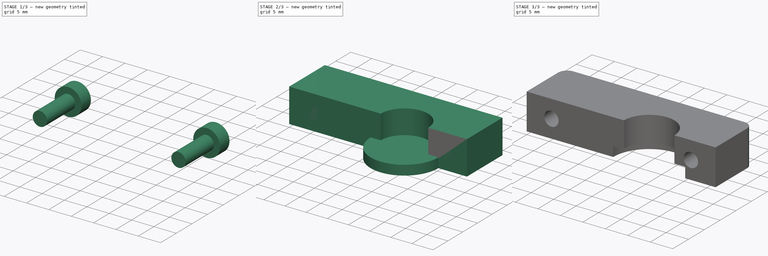
[diagram: build sequence overview — one tinted view per stage of 3, left to right]
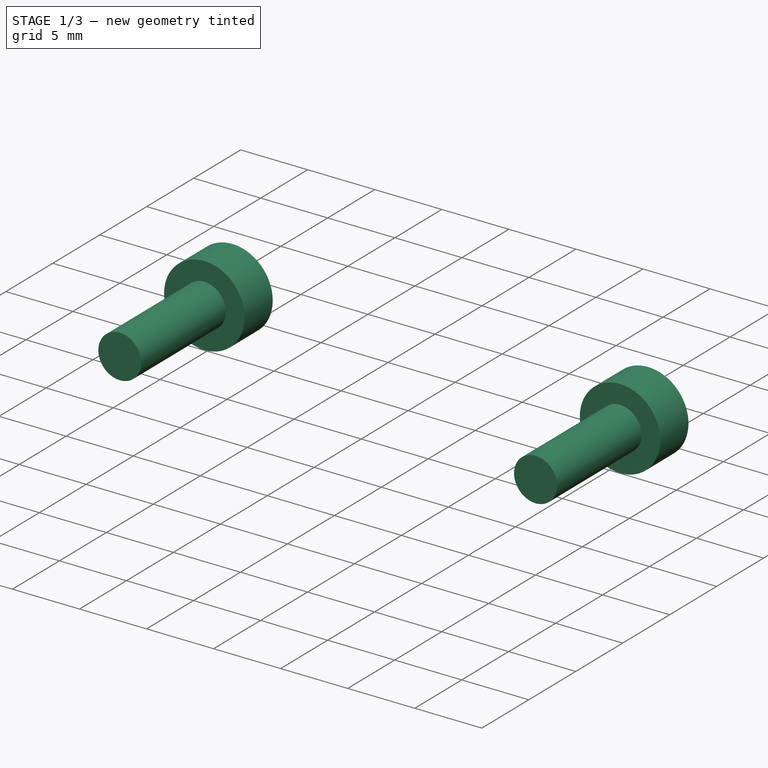
[diagram: stage 1 of 3 — iso view after this stage's code; geometry added in this stage tinted green]
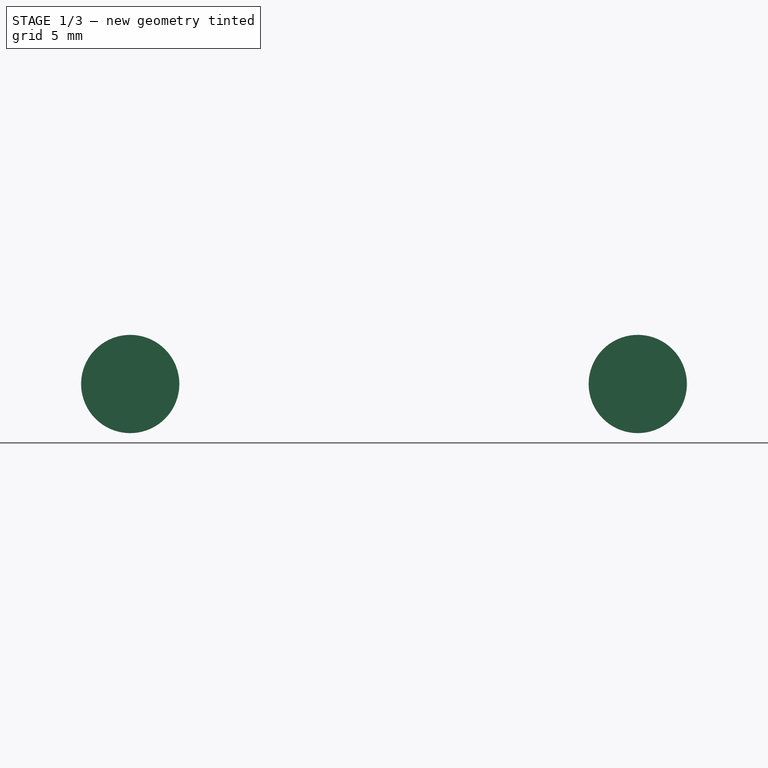
[diagram: stage 1 of 3 — front view after this stage's code; geometry added in this stage tinted green]
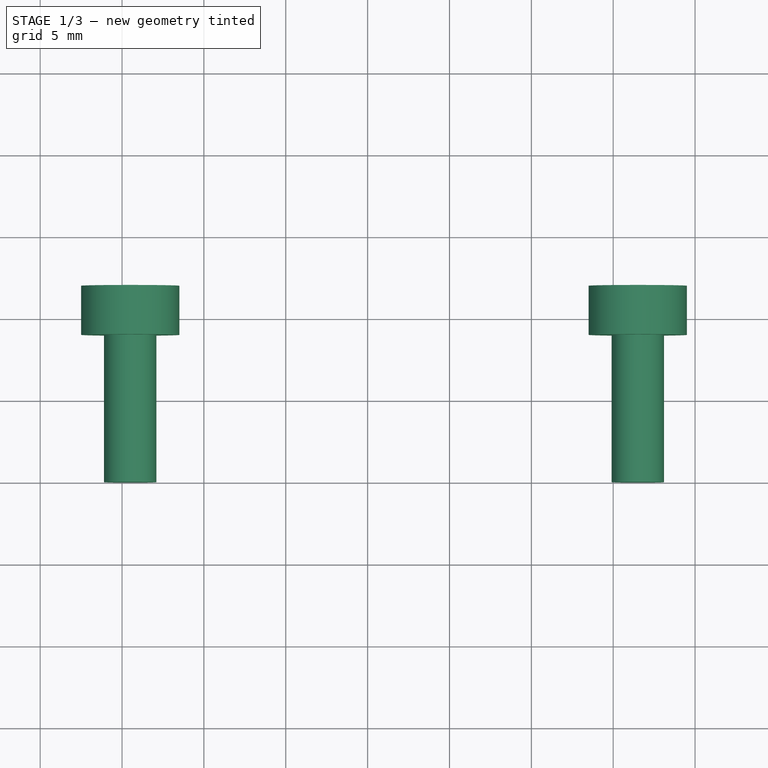
[diagram: stage 1 of 3 — top view after this stage's code; geometry added in this stage tinted green]
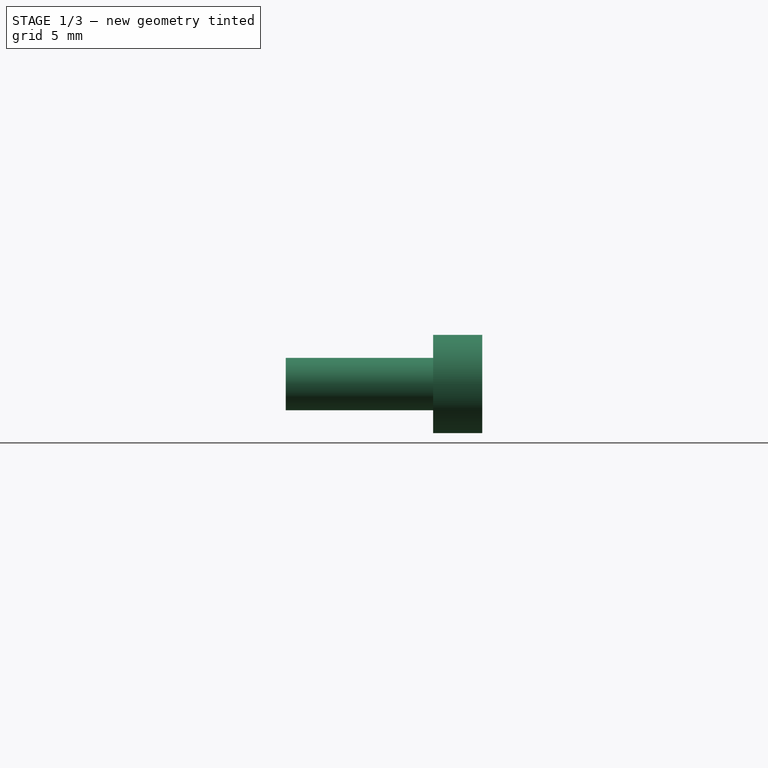
[diagram: stage 1 of 3 — right view after this stage's code; geometry added in this stage tinted green]
FCSTD DOCUMENT  (FreeCAD 0.16R6707 (Git))
Label: HotEndMount
License: All rights reserved
LicenseURL: http://en.wikipedia.org/wiki/All_rights_reserved
objects: Sketcher::SketchObject×4, PartDesign::Pad×4, Part::MultiFuse×1, Part::Cut×1, PartDesign::Fillet×1
note: 15 computed .brp shape members not serialized (recipe doc carries the construction recipe); baked Part::Feature solids carry a one-line shape summary decoded from their .brp

FEATURE [Sketcher::SketchObject] Sketch007  label="HotEndSK02"
  Placement = pos=(0,0,0) rot=(1,0,0;1.5708rad)
  sketch-geometry (2):
    g0: Circle CenterX=5.5 CenterY=4 CenterZ=0 NormalX=0 NormalY=0 NormalZ=1 Radius=1.6
    g1: Circle CenterX=36.5 CenterY=4 CenterZ=0 NormalX=0 NormalY=0 NormalZ=1 Radius=1.6
  constraints (6):
    c: Radius(g1) = 1.6
    c: Equal(g1,g0)
    c: DistanceY(g1,g0) = 0
    c: DistanceX(g-1,g0) = 5.5
    c: DistanceX(g0,g1) = 31
    c: DistanceY(g-1,g0) = 4
FEATURE [PartDesign::Pad] Pad007  label="HotEndMount02"
  Length = 12
  Length2 = 100
  Placement = pos=(0,0,0) rot=(1,0,0;1.5708rad)
  Reversed = true
  Sketch = -> Sketch007
  Type = 0
FEATURE [Sketcher::SketchObject] Sketch008  label="FlushSK"
  Placement = pos=(0,9,0) rot=(1,0,0;1.5708rad)
  sketch-geometry (2):
    g0: Circle CenterX=5.5 CenterY=4 CenterZ=0 NormalX=0 NormalY=0 NormalZ=1 Radius=3
    g1: Circle CenterX=36.5 CenterY=4 CenterZ=0 NormalX=0 NormalY=0 NormalZ=1 Radius=3
  constraints (6):
    c: DistanceY(g0,g1) = 0
    c: DistanceX(g0,g1) = 31
    c: DistanceY(g-1,g0) = 4
    c: DistanceX(g-1,g0) = 5.5
    c: Radius(g0) = 3
    c: Equal(g0,g1)
FEATURE [PartDesign::Pad] Pad008  label="Flush"
  Length = 3
  Length2 = 100
  Placement = pos=(0,9,0) rot=(1,0,0;1.5708rad)
  Reversed = true
  Sketch = -> Sketch008
  Type = 0
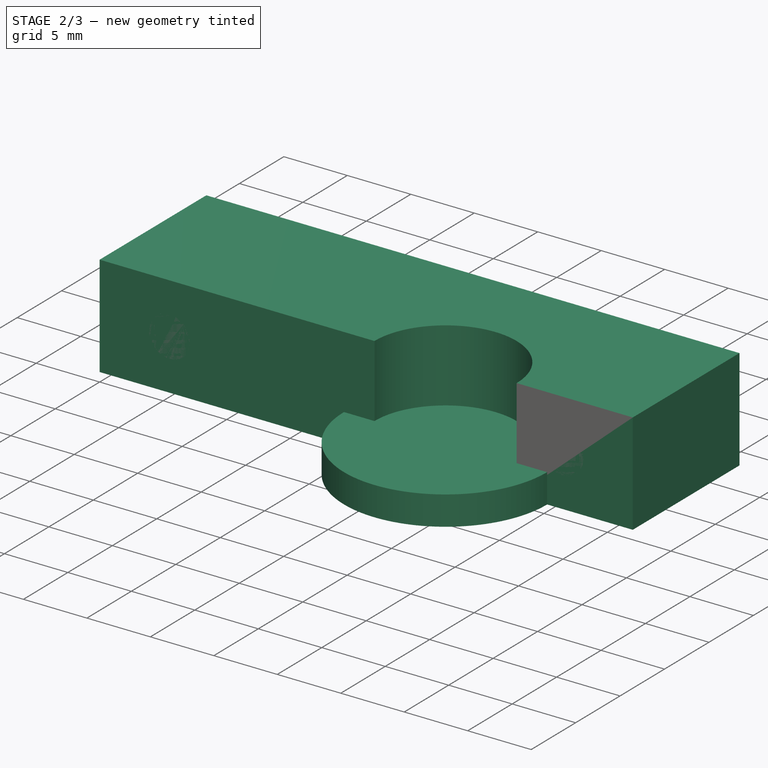
[diagram: stage 2 of 3 — iso view after this stage's code; geometry added in this stage tinted green]
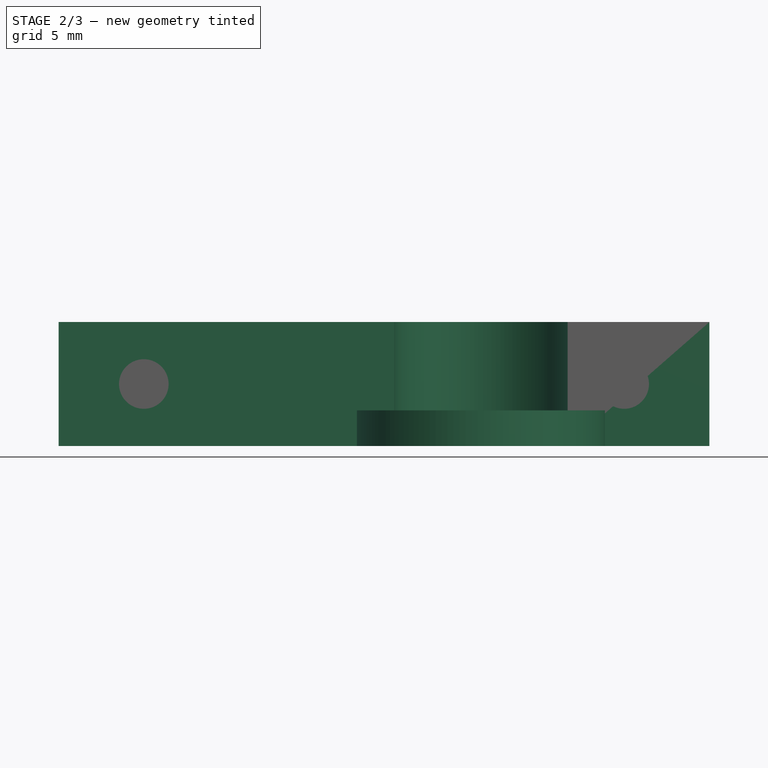
[diagram: stage 2 of 3 — front view after this stage's code; geometry added in this stage tinted green]
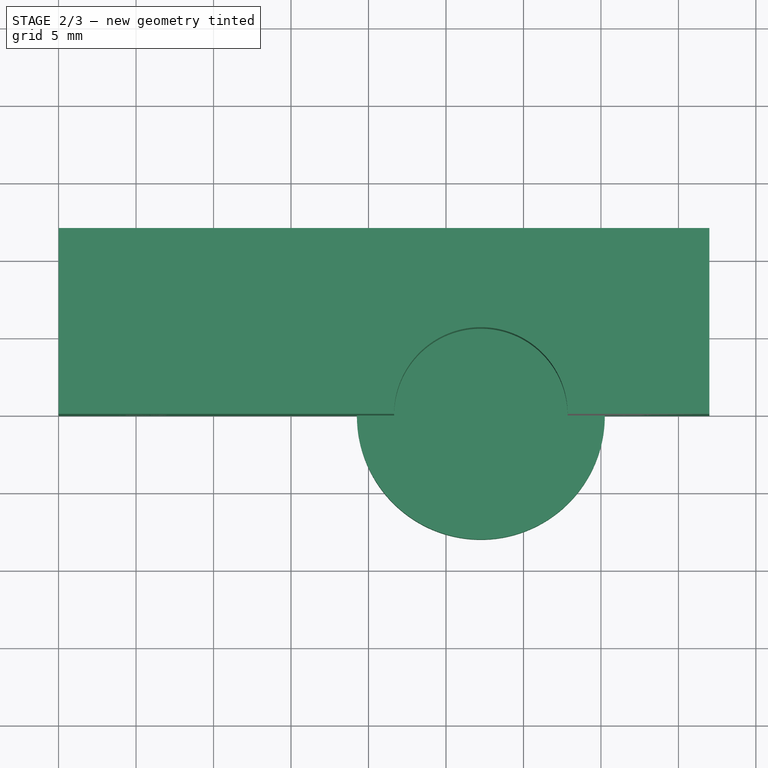
[diagram: stage 2 of 3 — top view after this stage's code; geometry added in this stage tinted green]
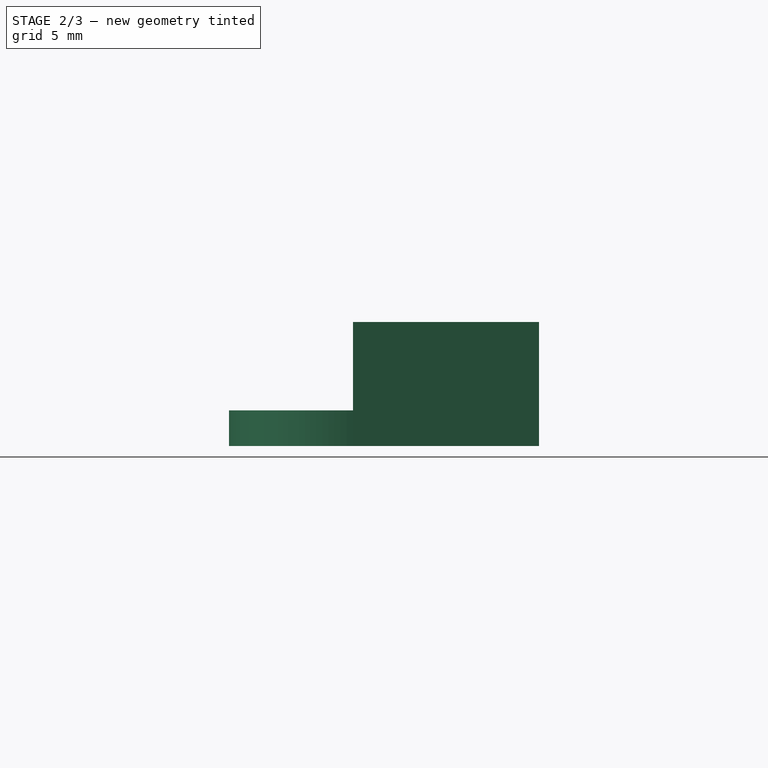
[diagram: stage 2 of 3 — right view after this stage's code; geometry added in this stage tinted green]
FEATURE [Sketcher::SketchObject] Sketch  label="BaseSK"
  sketch-geometry (6):
    g0: LineSegment StartX=0 StartY=12 StartZ=0 EndX=42 EndY=12 EndZ=0
    g1: LineSegment StartX=42 StartY=12 StartZ=0 EndX=42 EndY=0 EndZ=0
    g2: LineSegment StartX=0 StartY=0 StartZ=0 EndX=0 EndY=12 EndZ=0
    g3: ArcOfCircle CenterX=27.25 CenterY=0 CenterZ=0 NormalX=0 NormalY=0 NormalZ=1 Radius=5.6 StartAngle=0 EndAngle=3.14159
    g4: LineSegment StartX=21.65 StartY=0 StartZ=0 EndX=0 EndY=0 EndZ=0
    g5: LineSegment StartX=32.85 StartY=0 StartZ=0 EndX=42 EndY=0 EndZ=0
  constraints (18):
    c: Coincident(g0,g1)
    c: Coincident(g2,g0)
    c: Horizontal(g0)
    c: Vertical(g1)
    c: Vertical(g2)
    c: DistanceX(g2,g1) = 42
    c: DistanceY(g2,g2) = 12
    c: Horizontal(g5)
    c: Horizontal(g4)
    c: Coincident(g4,g-1)
    c: Coincident(g3,g4)
    c: PointOnObject(g3,g-1)
    c: Coincident(g3,g5)
    c: Coincident(g5,g1)
    c: Equal(g1,g2)
    c: Coincident(g2,g-1)
    c: Radius(g3) = 5.6
    c: DistanceX(g3,g1) = 14.75
FEATURE [PartDesign::Pad] Pad  label="Base"
  Length = 8
  Length2 = 100
  Sketch = -> Sketch
  Type = 0
FEATURE [Sketcher::SketchObject] Sketch005  label="HotEndSK"
  sketch-geometry (1):
    g0: Circle CenterX=27.25 CenterY=0 CenterZ=0 NormalX=0 NormalY=0 NormalZ=1 Radius=8
  constraints (3):
    c: PointOnObject(g0,g-1)
    c: DistanceX(g-1,g0) = 27.25
    c: Radius(g0) = 8
FEATURE [PartDesign::Pad] Pad005  label="HotEndMount"
  Length = 2.3
  Length2 = 100
  Sketch = -> Sketch005
  Type = 0
FEATURE [Part::MultiFuse] Fusion  label="CutBlock"
  Shapes = -> [Pad008,Pad007,Pad005]
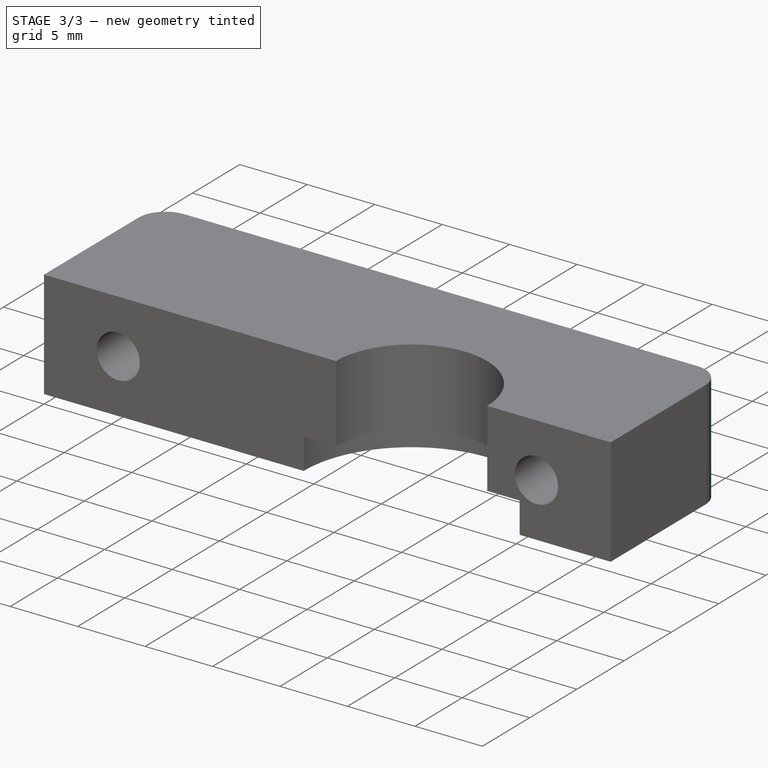
[diagram: stage 3 of 3 — iso view after this stage's code; geometry added in this stage tinted green]
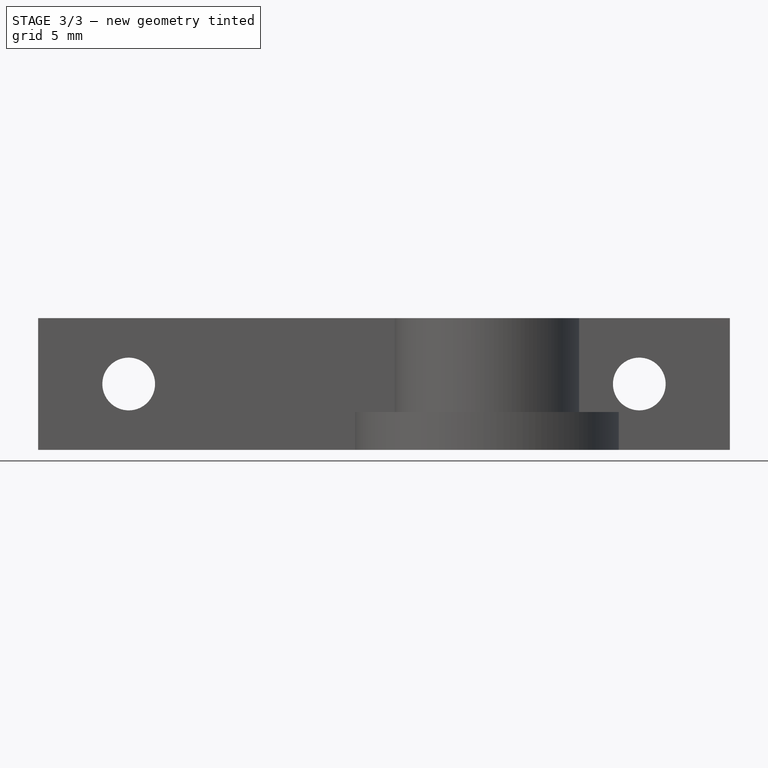
[diagram: stage 3 of 3 — front view after this stage's code; geometry added in this stage tinted green]
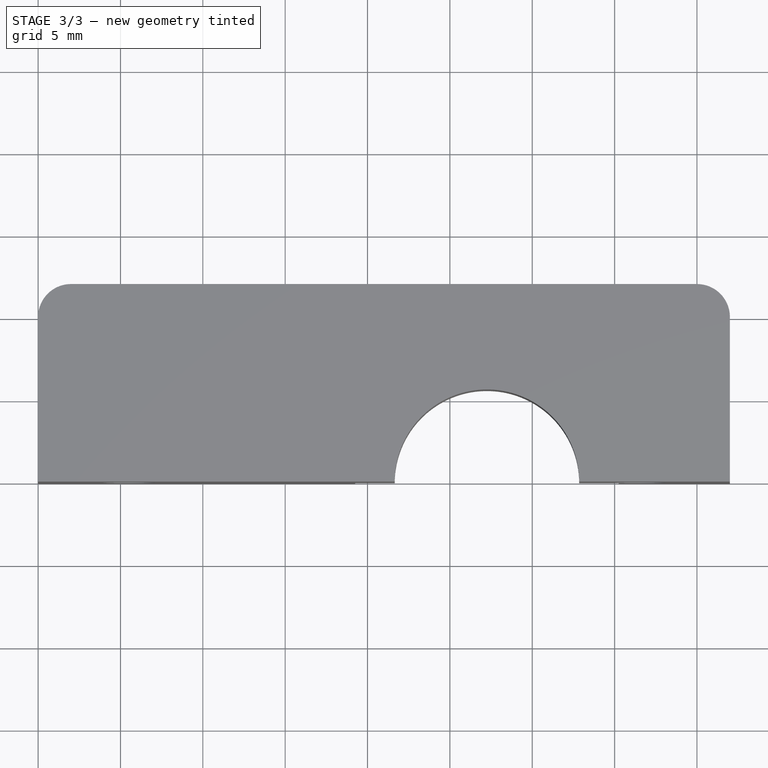
[diagram: stage 3 of 3 — top view after this stage's code; geometry added in this stage tinted green]
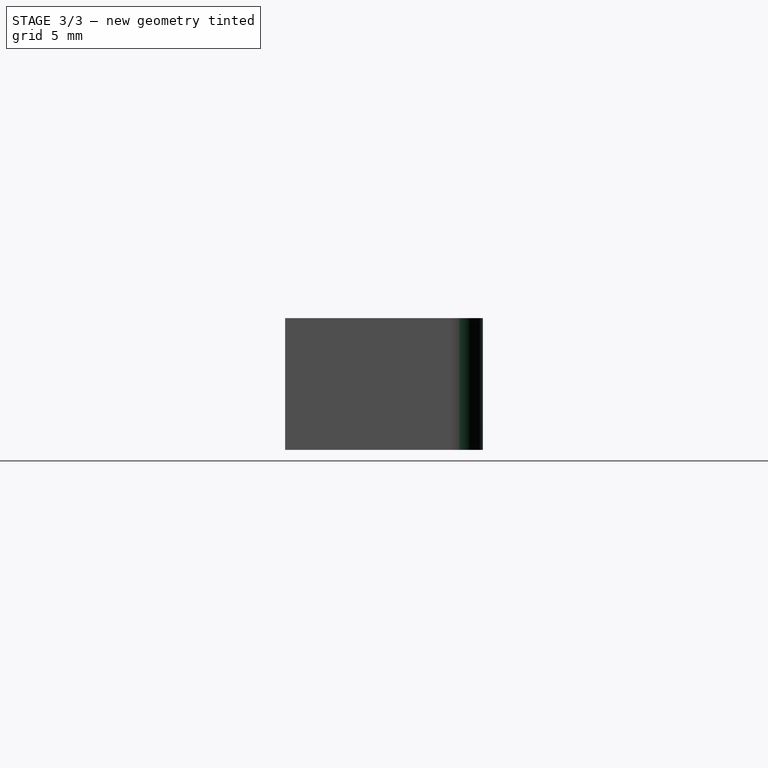
[diagram: stage 3 of 3 — right view after this stage's code; geometry added in this stage tinted green]
FEATURE [Part::Cut] Cut
  Base = -> Pad
  Tool = -> Fusion
FEATURE [PartDesign::Fillet] Fillet
  Base = -> Cut [Edge28,Edge25]
  Radius = 2
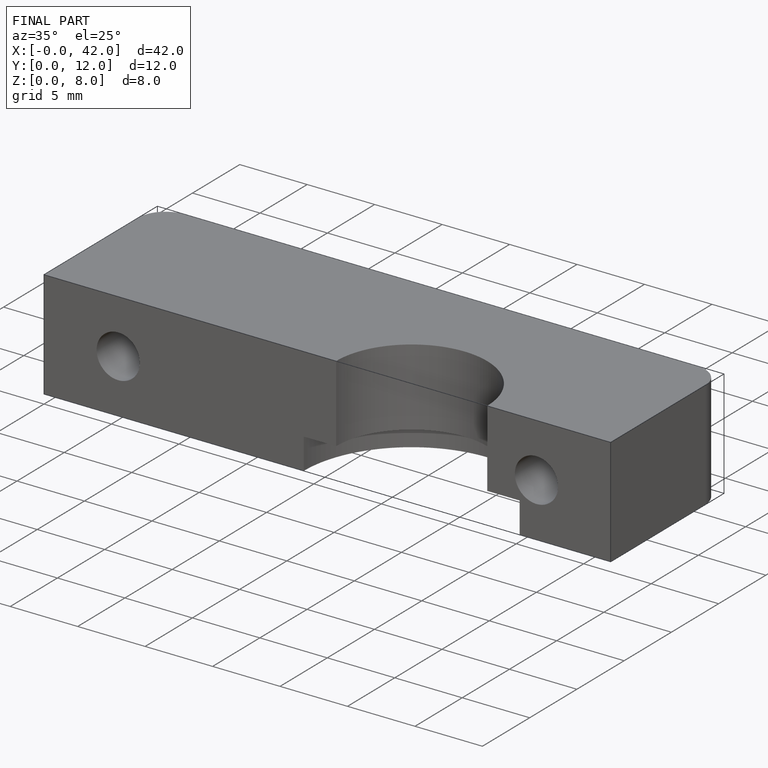
[diagram: finished part — iso view with bounding-box wireframe]
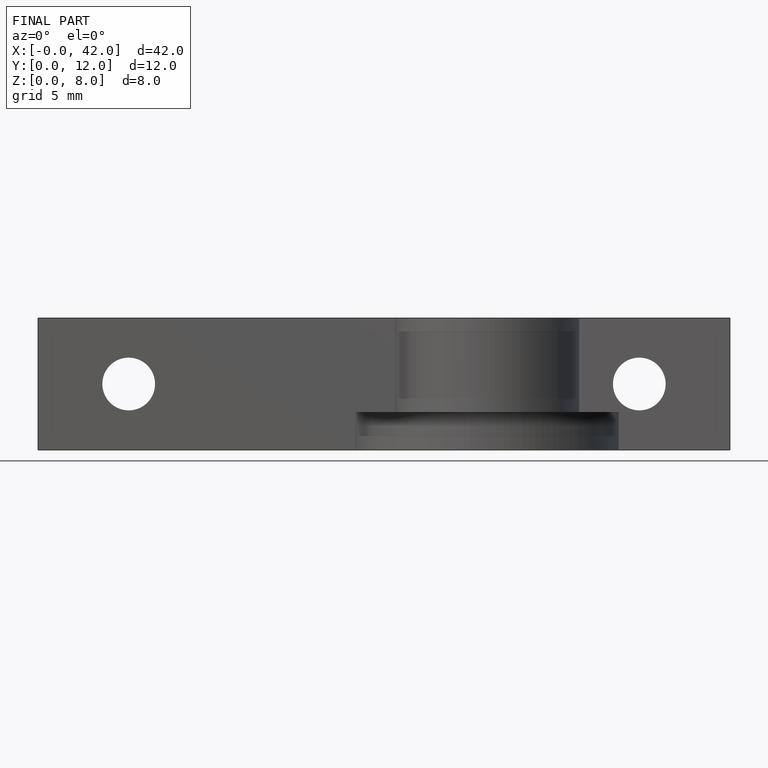
[diagram: finished part — front view with bounding-box wireframe]
